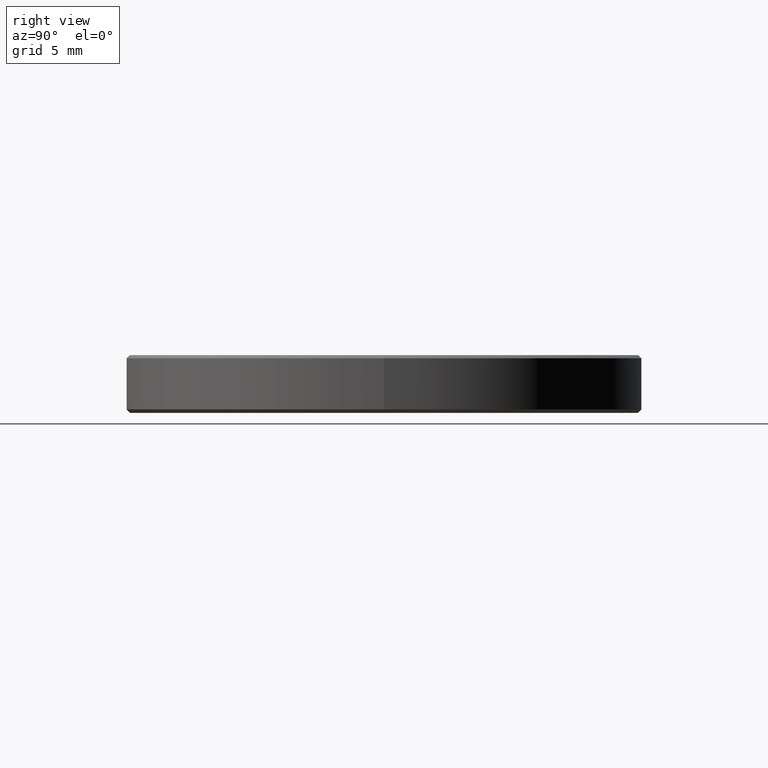
[diagram: clean part render]
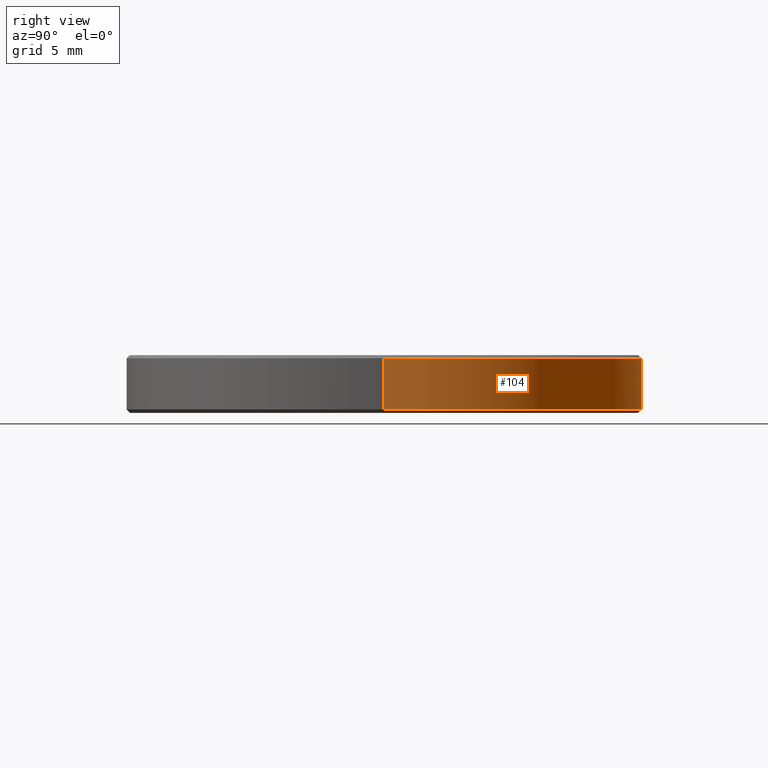
[diagram: same view with one face highlighted and labeled with its STEP entity id]
A machine part, right view. The second image highlights one B-rep face of the part: STEP entity #104.
In plain terms, the highlighted cylindrical surface (partial cylindrical patch) has radius 15 mm, axis along (-0, -0, 1).
Its self-contained STEP definition (entity closure, byte-faithful):
#7 = VECTOR ( 'NONE', #16, 1000.000000000000000 ) ;
#16 = DIRECTION ( 'NONE',  ( -0.000000000000000000, -0.000000000000000000, 1.000000000000000000 ) ) ;
#19 = LINE ( 'NONE', #39, #262 ) ;
#26 = AXIS2_PLACEMENT_3D ( 'NONE', #206, #63, #98 ) ;
#30 = VERTEX_POINT ( 'NONE', #129 ) ;
#39 = CARTESIAN_POINT ( 'NONE',  ( 15.00000000000000000, 0.000000000000000000, 2.500000000000000000 ) ) ;
#58 = DIRECTION ( 'NONE',  ( 1.000000000000000000, 0.000000000000000000, 0.000000000000000000 ) ) ;
#61 = DIRECTION ( 'NONE',  ( -0.000000000000000000, -0.000000000000000000, 1.000000000000000000 ) ) ;
#62 = EDGE_CURVE ( 'NONE', #212, #171, #96, .T. ) ;
#63 = DIRECTION ( 'NONE',  ( -0.000000000000000000, -0.000000000000000000, 1.000000000000000000 ) ) ;
#73 = CIRCLE ( 'NONE', #128, 15.00000000000000000 ) ;
#76 = DIRECTION ( 'NONE',  ( -0.000000000000000000, -0.000000000000000000, 1.000000000000000000 ) ) ;
#80 = FACE_OUTER_BOUND ( 'NONE', #125, .T. ) ;
#83 = CARTESIAN_POINT ( 'NONE',  ( -15.00000000000000000, 1.836970198721029589E-15, 3.170000000000006146 ) ) ;
#96 = LINE ( 'NONE', #263, #7 ) ;
#98 = DIRECTION ( 'NONE',  ( 1.000000000000000000, 0.000000000000000000, 0.000000000000000000 ) ) ;
#100 = CARTESIAN_POINT ( 'NONE',  ( -15.00000000000000000, 1.836970198721029589E-15, 0.1999999999999996503 ) ) ;
#104 = ADVANCED_FACE ( 'NONE', ( #80 ), #114, .T. ) ;
#109 = ORIENTED_EDGE ( 'NONE', *, *, #172, .T. ) ;
#114 = CYLINDRICAL_SURFACE ( 'NONE', #147, 15.00000000000000000 ) ;
#121 = ORIENTED_EDGE ( 'NONE', *, *, #252, .F. ) ;
#125 = EDGE_LOOP ( 'NONE', ( #109, #158, #255, #121 ) ) ;
#126 = VERTEX_POINT ( 'NONE', #241 ) ;
#128 = AXIS2_PLACEMENT_3D ( 'NONE', #249, #204, #159 ) ;
#129 = CARTESIAN_POINT ( 'NONE',  ( 15.00000000000000000, 0.000000000000000000, 0.1999999999999996503 ) ) ;
#147 = AXIS2_PLACEMENT_3D ( 'NONE', #244, #76, #58 ) ;
#158 = ORIENTED_EDGE ( 'NONE', *, *, #62, .T. ) ;
#159 = DIRECTION ( 'NONE',  ( -1.000000000000000000, 0.000000000000000000, 0.000000000000000000 ) ) ;
#171 = VERTEX_POINT ( 'NONE', #83 ) ;
#172 = EDGE_CURVE ( 'NONE', #30, #212, #242, .T. ) ;
#204 = DIRECTION ( 'NONE',  ( 0.000000000000000000, 0.000000000000000000, -1.000000000000000000 ) ) ;
#206 = CARTESIAN_POINT ( 'NONE',  ( 0.000000000000000000, 0.000000000000000000, 0.1999999999999996503 ) ) ;
#212 = VERTEX_POINT ( 'NONE', #100 ) ;
#213 = EDGE_CURVE ( 'NONE', #171, #126, #73, .T. ) ;
#241 = CARTESIAN_POINT ( 'NONE',  ( 15.00000000000000000, 0.000000000000000000, 3.170000000000006146 ) ) ;
#242 = CIRCLE ( 'NONE', #26, 15.00000000000000000 ) ;
#244 = CARTESIAN_POINT ( 'NONE',  ( 0.000000000000000000, 0.000000000000000000, 2.500000000000000000 ) ) ;
#249 = CARTESIAN_POINT ( 'NONE',  ( 0.000000000000000000, 0.000000000000000000, 3.170000000000006146 ) ) ;
#252 = EDGE_CURVE ( 'NONE', #30, #126, #19, .T. ) ;
#255 = ORIENTED_EDGE ( 'NONE', *, *, #213, .T. ) ;
#262 = VECTOR ( 'NONE', #61, 1000.000000000000000 ) ;
#263 = CARTESIAN_POINT ( 'NONE',  ( -15.00000000000000000, 1.836970198721029589E-15, 2.500000000000000000 ) ) ;